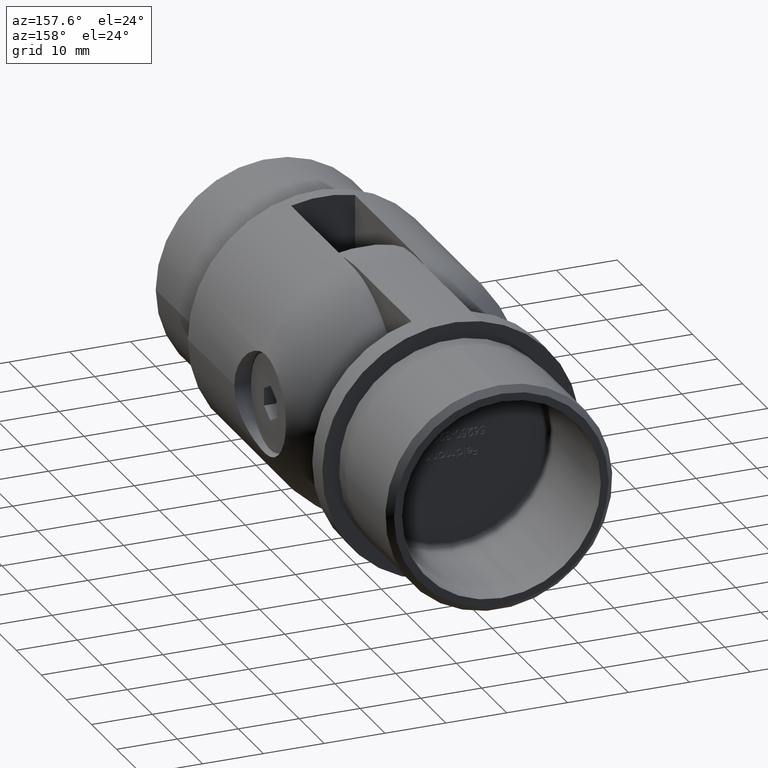
[diagram: clean part render]
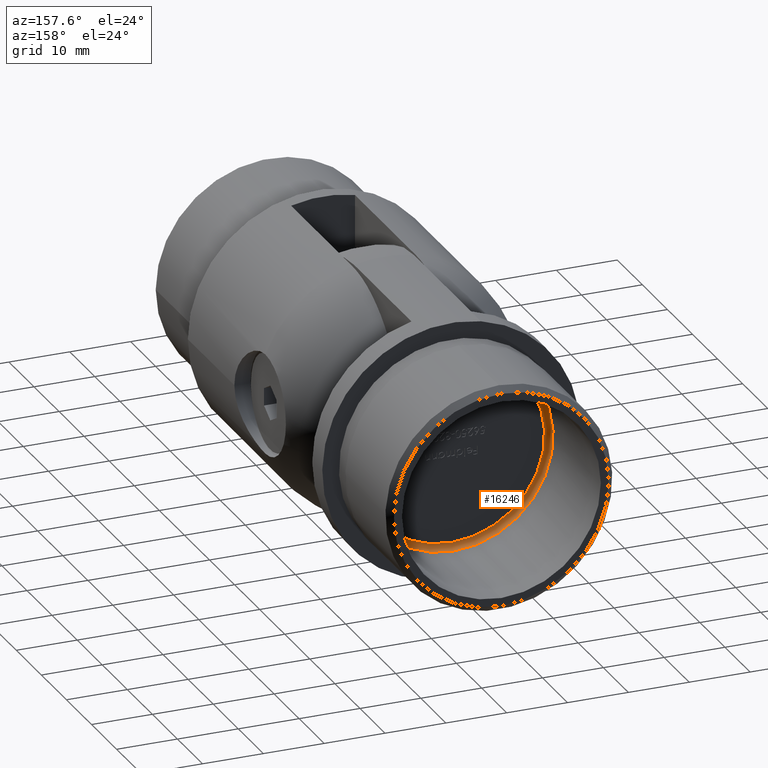
[diagram: same view with one face highlighted and labeled with its STEP entity id]
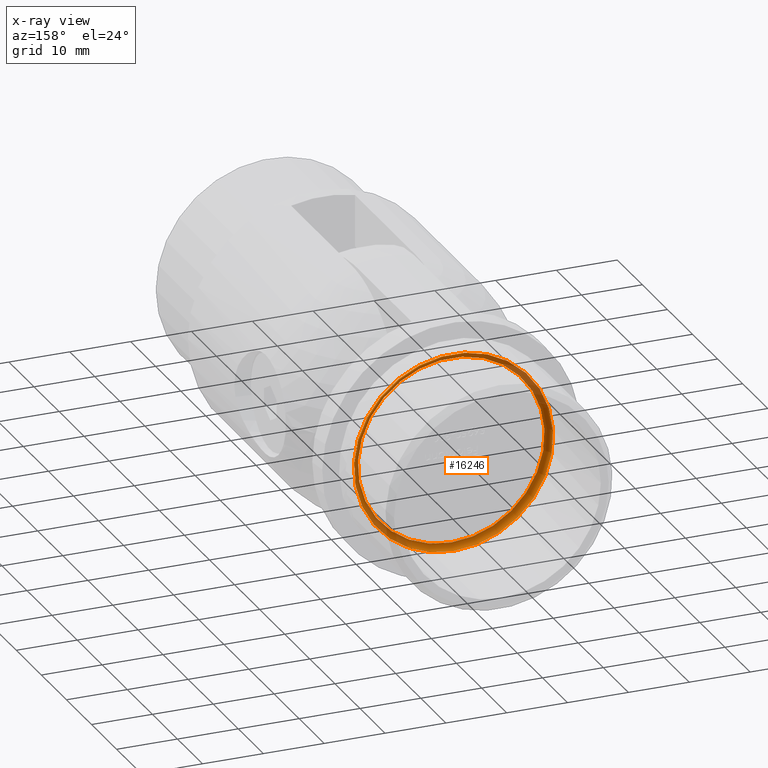
[diagram: x-ray of the same camera — body ghosted, the highlighted face saturated]
A machine part, auxiliary view. The second image highlights one B-rep face of the part: STEP entity #16246.
The next image is the same camera in x-ray: the body ghosted, the highlighted face saturated — about 19% of this face is hidden behind the body in this view.
In plain terms, the highlighted toroidal blend (fillet) surface has major radius 15.35 mm and minor (blend) radius 1 mm.
Its self-contained STEP definition (entity closure, byte-faithful):
#684 = EDGE_LOOP ( 'NONE', ( #3181 ) ) ;
#2008 = DIRECTION ( 'NONE',  ( 0.0000000000000000000, 0.0000000000000000000, 1.000000000000000000 ) ) ;
#3121 = EDGE_LOOP ( 'NONE', ( #7939 ) ) ;
#3181 = ORIENTED_EDGE ( 'NONE', *, *, #5115, .F. ) ;
#3240 = EDGE_CURVE ( 'NONE', #11215, #11215, #10497, .T. ) ;
#3502 = CARTESIAN_POINT ( 'NONE',  ( 0.0000000000000000000, -1.000000000000000000, 16.35000000000000100 ) ) ;
#5102 = CARTESIAN_POINT ( 'NONE',  ( 0.0000000000000000000, -1.000000000000000000, 0.0000000000000000000 ) ) ;
#5115 = EDGE_CURVE ( 'NONE', #7045, #7045, #17189, .T. ) ;
#7045 = VERTEX_POINT ( 'NONE', #19312 ) ;
#7053 = FACE_OUTER_BOUND ( 'NONE', #684, .T. ) ;
#7165 = AXIS2_PLACEMENT_3D ( 'NONE', #10017, #11454, #2008 ) ;
#7559 = DIRECTION ( 'NONE',  ( 0.0000000000000000000, 0.0000000000000000000, 1.000000000000000000 ) ) ;
#7939 = ORIENTED_EDGE ( 'NONE', *, *, #3240, .F. ) ;
#10017 = CARTESIAN_POINT ( 'NONE',  ( 0.0000000000000000000, 0.0000000000000000000, 0.0000000000000000000 ) ) ;
#10497 = CIRCLE ( 'NONE', #15242, 16.35000000000000100 ) ;
#11215 = VERTEX_POINT ( 'NONE', #3502 ) ;
#11229 = FACE_OUTER_BOUND ( 'NONE', #3121, .T. ) ;
#11454 = DIRECTION ( 'NONE',  ( -0.0000000000000000000, -1.000000000000000000, -0.0000000000000000000 ) ) ;
#12963 = TOROIDAL_SURFACE ( 'NONE', #19775, 15.35000000000000000, 1.000000000000000000 ) ;
#13176 = DIRECTION ( 'NONE',  ( 0.0000000000000000000, 1.000000000000000000, 0.0000000000000000000 ) ) ;
#13685 = CARTESIAN_POINT ( 'NONE',  ( 0.0000000000000000000, -1.000000000000000000, 0.0000000000000000000 ) ) ;
#13759 = DIRECTION ( 'NONE',  ( 0.0000000000000000000, 1.000000000000000000, 0.0000000000000000000 ) ) ;
#14641 = DIRECTION ( 'NONE',  ( 0.0000000000000000000, 0.0000000000000000000, 1.000000000000000000 ) ) ;
#15242 = AXIS2_PLACEMENT_3D ( 'NONE', #13685, #13759, #7559 ) ;
#16246 = ADVANCED_FACE ( 'NONE', ( #11229, #7053 ), #12963, .F. ) ;
#17189 = CIRCLE ( 'NONE', #7165, 15.35000000000000000 ) ;
#19312 = CARTESIAN_POINT ( 'NONE',  ( 0.0000000000000000000, 0.0000000000000000000, 15.35000000000000000 ) ) ;
#19775 = AXIS2_PLACEMENT_3D ( 'NONE', #5102, #13176, #14641 ) ;